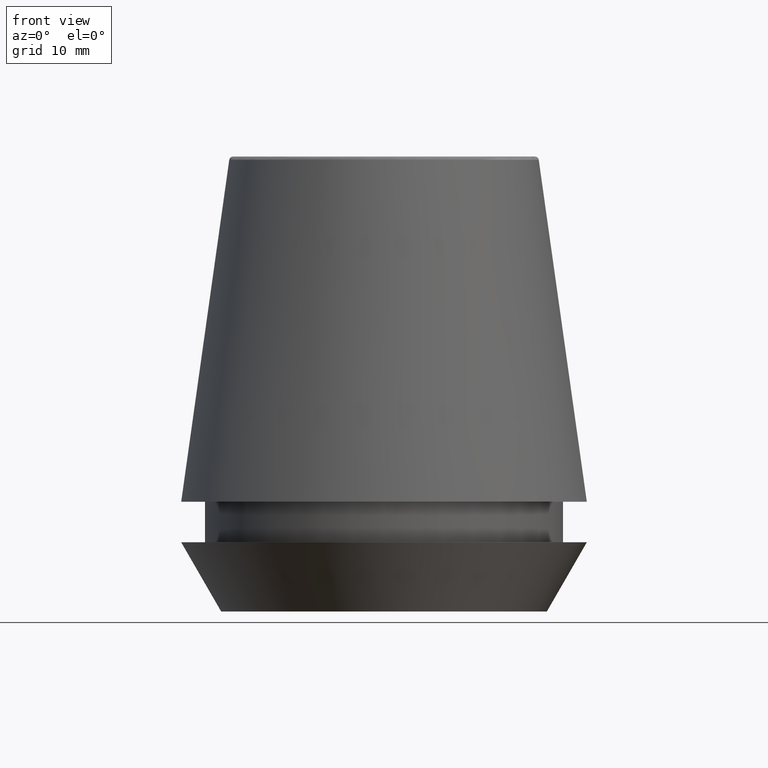
[diagram: clean part render]
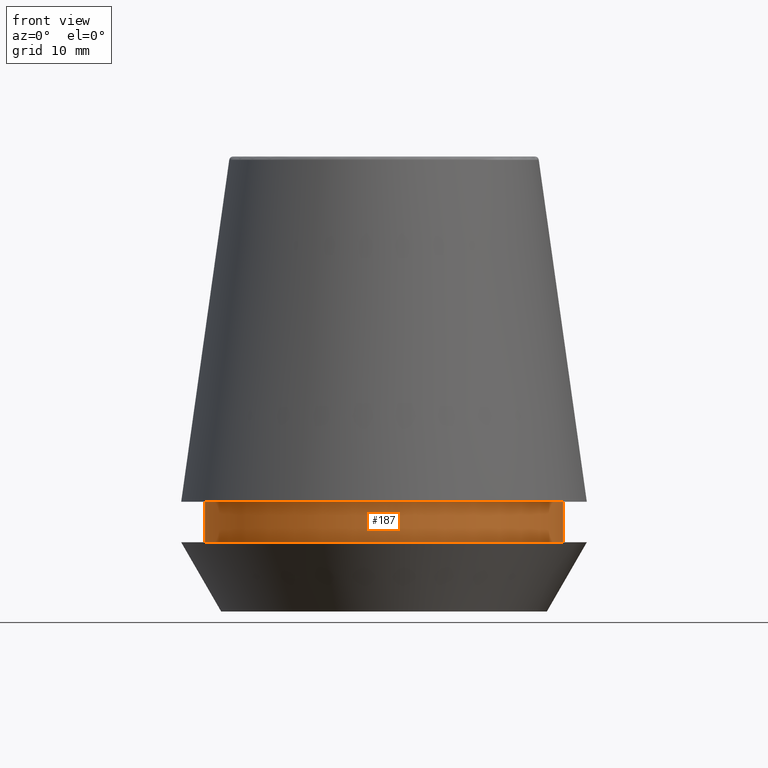
[diagram: same view with one face highlighted and labeled with its STEP entity id]
A machine part, front view. The second image highlights one B-rep face of the part: STEP entity #187.
In plain terms, the highlighted cylindrical surface (partial cylindrical patch) has radius 18.1 mm, axis along (-0, -0, 1).
Its self-contained STEP definition (entity closure, byte-faithful):
#3 = EDGE_CURVE ( 'NONE', #75, #82, #293, .T. ) ;
#14 = VECTOR ( 'NONE', #229, 1000.000000000000000 ) ;
#18 = CARTESIAN_POINT ( 'NONE',  ( -18.10000000000000500, 2.216610706456710000E-015, 11.09999999999999800 ) ) ;
#46 = CARTESIAN_POINT ( 'NONE',  ( 0.0000000000000000000, 0.0000000000000000000, 46.00000000000000000 ) ) ;
#54 = CARTESIAN_POINT ( 'NONE',  ( -18.10000000000000500, 2.216610706456710000E-015, 46.00000000000000000 ) ) ;
#71 = ORIENTED_EDGE ( 'NONE', *, *, #360, .T. ) ;
#73 = CARTESIAN_POINT ( 'NONE',  ( 0.0000000000000000000, 0.0000000000000000000, 6.999999999999999100 ) ) ;
#75 = VERTEX_POINT ( 'NONE', #186 ) ;
#82 = VERTEX_POINT ( 'NONE', #100 ) ;
#91 = AXIS2_PLACEMENT_3D ( 'NONE', #73, #242, #161 ) ;
#95 = LINE ( 'NONE', #349, #240 ) ;
#100 = CARTESIAN_POINT ( 'NONE',  ( 18.10000000000000100, 0.0000000000000000000, 6.999999999999999100 ) ) ;
#103 = CARTESIAN_POINT ( 'NONE',  ( 0.0000000000000000000, 0.0000000000000000000, 11.09999999999999800 ) ) ;
#108 = LINE ( 'NONE', #54, #14 ) ;
#117 = CYLINDRICAL_SURFACE ( 'NONE', #365, 18.10000000000000500 ) ;
#129 = DIRECTION ( 'NONE',  ( 1.000000000000000000, 0.0000000000000000000, 0.0000000000000000000 ) ) ;
#139 = ORIENTED_EDGE ( 'NONE', *, *, #3, .T. ) ;
#161 = DIRECTION ( 'NONE',  ( 1.000000000000000000, 0.0000000000000000000, 0.0000000000000000000 ) ) ;
#162 = VERTEX_POINT ( 'NONE', #18 ) ;
#182 = CIRCLE ( 'NONE', #232, 18.10000000000000500 ) ;
#186 = CARTESIAN_POINT ( 'NONE',  ( -18.10000000000000100, 2.216610706456709600E-015, 6.999999999999999100 ) ) ;
#187 = ADVANCED_FACE ( 'NONE', ( #294 ), #117, .T. ) ;
#214 = VERTEX_POINT ( 'NONE', #277 ) ;
#219 = DIRECTION ( 'NONE',  ( 1.000000000000000000, 0.0000000000000000000, 0.0000000000000000000 ) ) ;
#229 = DIRECTION ( 'NONE',  ( -0.0000000000000000000, -0.0000000000000000000, 1.000000000000000000 ) ) ;
#232 = AXIS2_PLACEMENT_3D ( 'NONE', #103, #303, #129 ) ;
#240 = VECTOR ( 'NONE', #359, 1000.000000000000000 ) ;
#242 = DIRECTION ( 'NONE',  ( -0.0000000000000000000, -0.0000000000000000000, 1.000000000000000000 ) ) ;
#251 = DIRECTION ( 'NONE',  ( -0.0000000000000000000, -0.0000000000000000000, 1.000000000000000000 ) ) ;
#277 = CARTESIAN_POINT ( 'NONE',  ( 18.10000000000000500, 0.0000000000000000000, 11.09999999999999800 ) ) ;
#293 = CIRCLE ( 'NONE', #91, 18.10000000000000100 ) ;
#294 = FACE_OUTER_BOUND ( 'NONE', #324, .T. ) ;
#303 = DIRECTION ( 'NONE',  ( -0.0000000000000000000, -0.0000000000000000000, 1.000000000000000000 ) ) ;
#324 = EDGE_LOOP ( 'NONE', ( #363, #139, #71, #333 ) ) ;
#333 = ORIENTED_EDGE ( 'NONE', *, *, #335, .F. ) ;
#335 = EDGE_CURVE ( 'NONE', #162, #214, #182, .T. ) ;
#349 = CARTESIAN_POINT ( 'NONE',  ( 18.10000000000000500, 0.0000000000000000000, 46.00000000000000000 ) ) ;
#358 = EDGE_CURVE ( 'NONE', #75, #162, #108, .T. ) ;
#359 = DIRECTION ( 'NONE',  ( -0.0000000000000000000, -0.0000000000000000000, 1.000000000000000000 ) ) ;
#360 = EDGE_CURVE ( 'NONE', #82, #214, #95, .T. ) ;
#363 = ORIENTED_EDGE ( 'NONE', *, *, #358, .F. ) ;
#365 = AXIS2_PLACEMENT_3D ( 'NONE', #46, #251, #219 ) ;